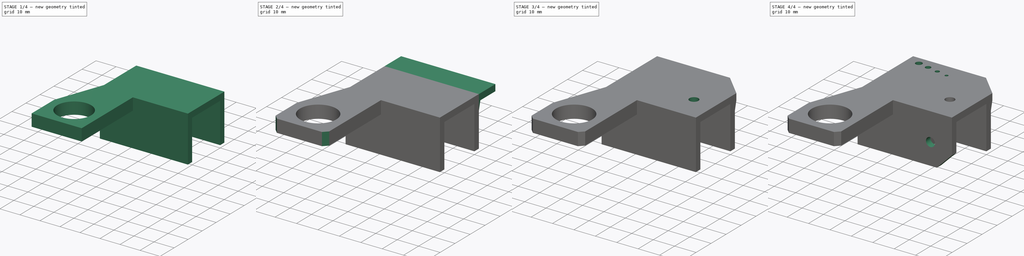
[diagram: build sequence overview — one tinted view per stage of 4, left to right]
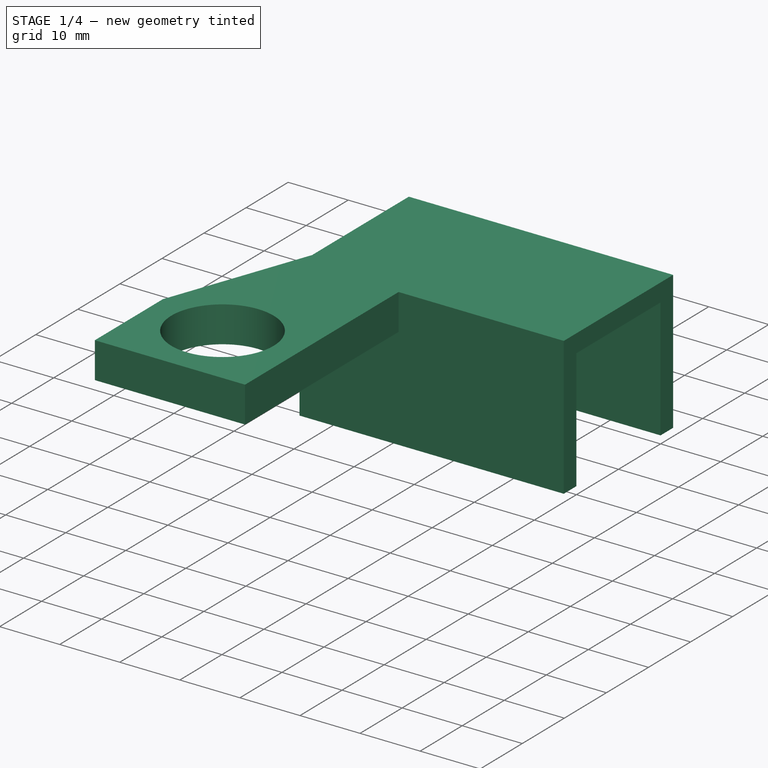
[diagram: stage 1 of 4 — iso view after this stage's code; geometry added in this stage tinted green]
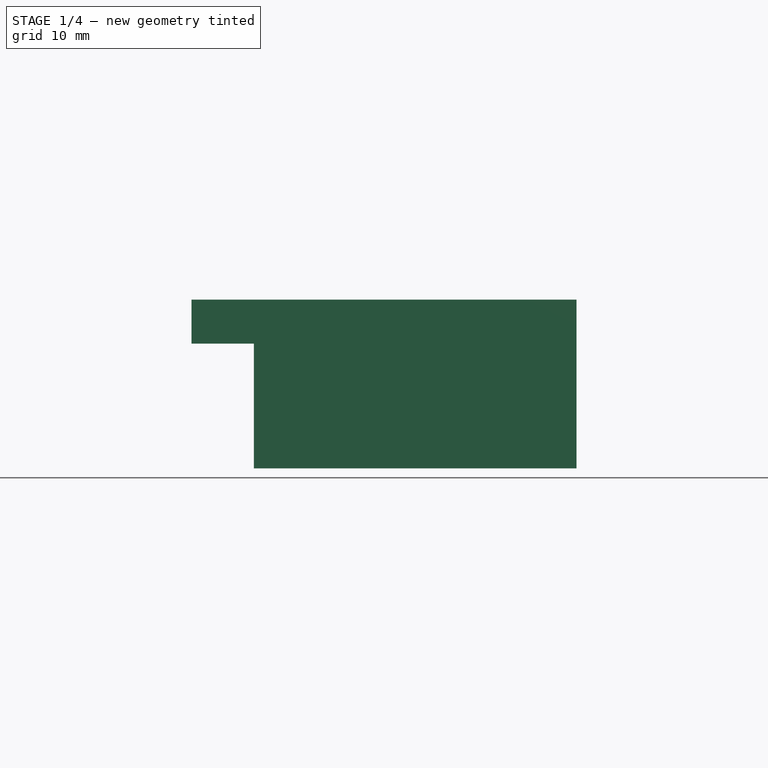
[diagram: stage 1 of 4 — front view after this stage's code; geometry added in this stage tinted green]
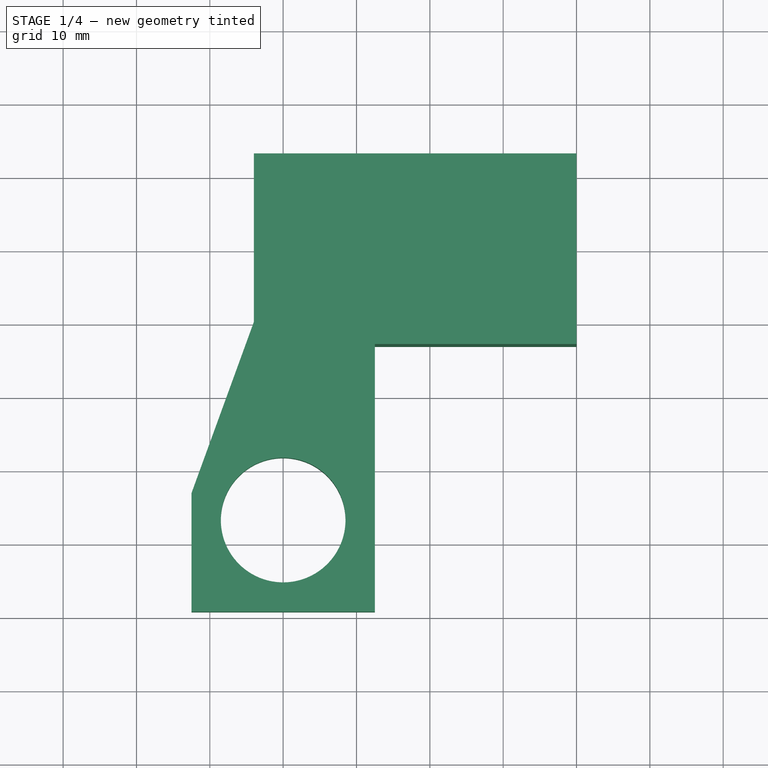
[diagram: stage 1 of 4 — top view after this stage's code; geometry added in this stage tinted green]
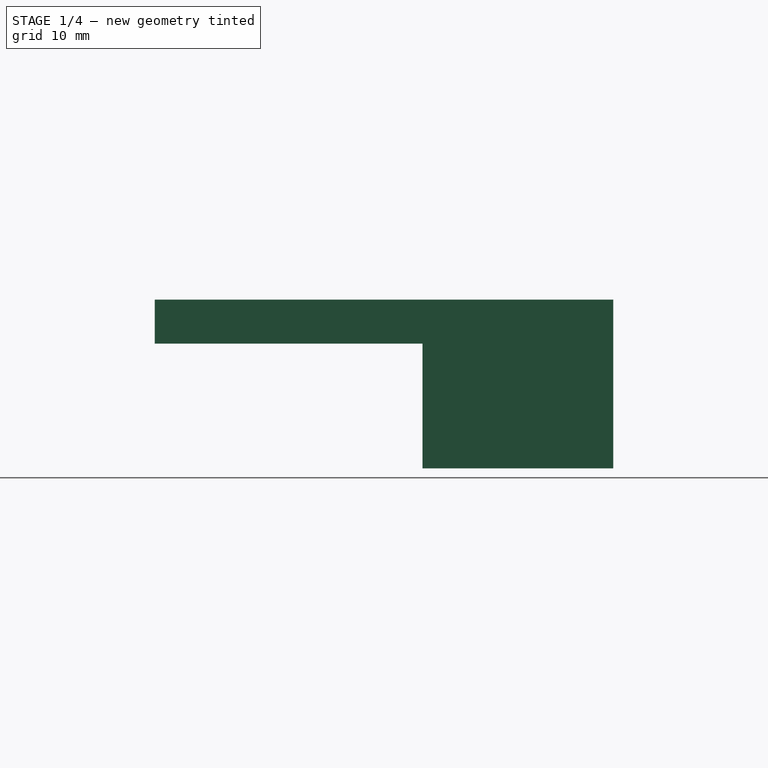
[diagram: stage 1 of 4 — right view after this stage's code; geometry added in this stage tinted green]
FCSTD DOCUMENT  (FreeCAD 0.14R3692 (Git))
Label: z-top
License: CC-BY 3.0
LicenseURL: http://creativecommons.org/licenses/by/3.0/
objects: Sketcher::SketchObject×7, Part::Chamfer×4, PartDesign::Pocket×4, Part::Feature×4, PartDesign::Pad×3, Part::Box×1, Part::Thickness×1, App::DocumentObjectGroup×1
note: 31 computed .brp shape members not serialized (recipe doc carries the construction recipe); baked Part::Feature solids carry a one-line shape summary decoded from their .brp

FEATURE [Part::Box] Box  label="body-cube"
  Height = 20
  Length = 41
  Placement = pos=(-1,0,0) rot=(0,0,1;0rad)
  Width = 20
FEATURE [Part::Thickness] Thickness  label="body-thickness"
  Faces = -> Box [Face2,Face5]
  Intersection = false
  Join = 2
  Mode = 0
  SelfIntersection = false
  Value = 3
FEATURE [Sketcher::SketchObject] Sketch  label="bearing-holder-sketch"
  Placement = pos=(0,0,23) rot=(0,0,1;0rad)
  Support = -> Thickness [Face10]
  sketch-geometry (8):
    g0: Circle CenterX=0 CenterY=-27 CenterZ=0 NormalX=0 NormalY=0 NormalZ=1 Radius=8.5
    g1: Circle [constr] CenterX=0 CenterY=-27 CenterZ=0 NormalX=0 NormalY=0 NormalZ=1 Radius=12.5
    g2: LineSegment StartX=12.5 StartY=0 StartZ=0 EndX=12.5 EndY=-39.5 EndZ=0
    g3: LineSegment StartX=12.5 StartY=-39.5 StartZ=0 EndX=-12.5 EndY=-39.5 EndZ=0
    g4: LineSegment StartX=-12.5 StartY=-23.3333 StartZ=0 EndX=-12.5 EndY=-39.5 EndZ=0
    g5: LineSegment StartX=-4 StartY=0 StartZ=0 EndX=-12.5 EndY=-23.3333 EndZ=0
    g6: LineSegment StartX=-4 StartY=0 StartZ=0 EndX=12.5 EndY=0 EndZ=0
    g7: Circle [constr] CenterX=0 CenterY=-27 CenterZ=0 NormalX=0 NormalY=0 NormalZ=1 Radius=13
  constraints (22):
    c: DistanceY(g-1,g0) = -27
    c: PointOnObject(g0,g-2)
    c: Radius(g0) = 8.5
    c: Coincident(g1,g0)
    c: Radius(g1) = 12.5
    c: PointOnObject(g2,g-1)
    c: Vertical(g2)
    c: Tangent(g1,g2)
    c: Coincident(g2,g3)
    c: Horizontal(g3)
    c: Coincident(g3,g4)
    c: Vertical(g4)
    c: Tangent(g3,g1)
    c: Tangent(g4,g1)
    c: Coincident(g4,g5)
    c: PointOnObject(g5,g-1)
    c: DistanceX(g-1,g5) = -4
    c: Coincident(g6,g2)
    c: Coincident(g6,g5)
    c: Coincident(g7,g0)
    c: Radius(g7) = 13
    c: Tangent(g7,g5)
FEATURE [PartDesign::Pad] Pad  label="bearing-holder-pad"
  Length = 6
  Length2 = 100
  Reversed = true
  Sketch = -> Sketch
  Type = 0
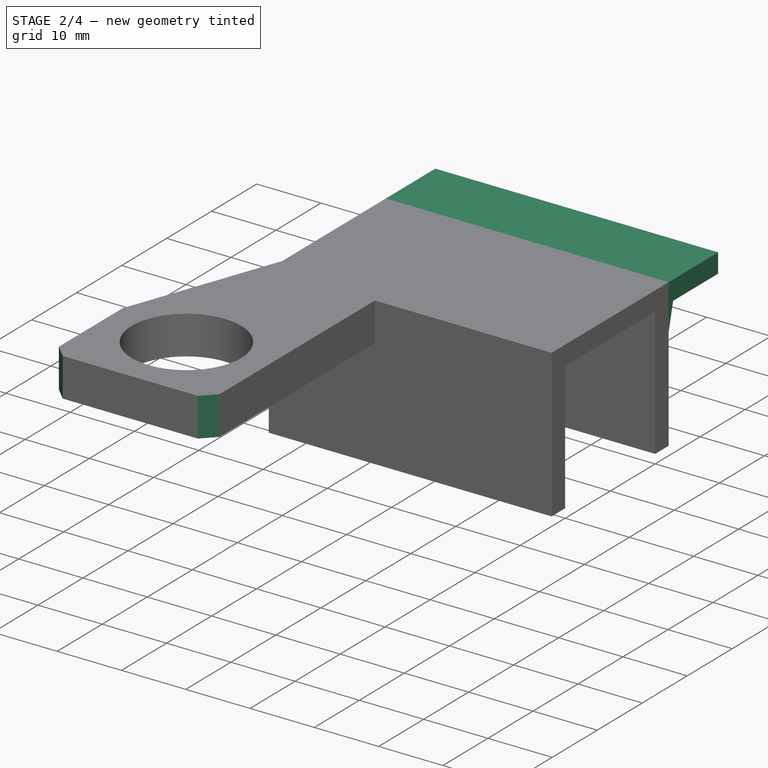
[diagram: stage 2 of 4 — iso view after this stage's code; geometry added in this stage tinted green]
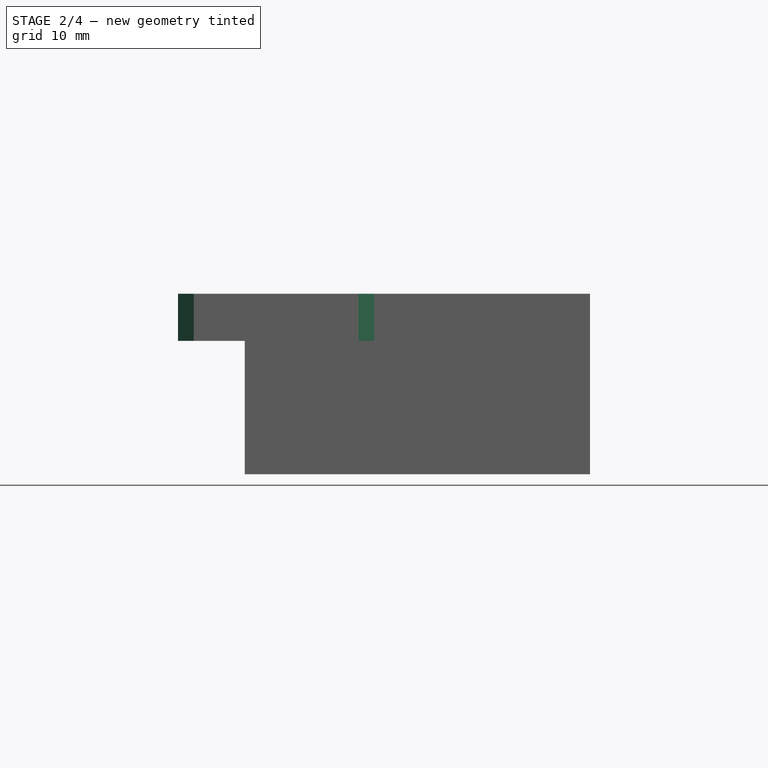
[diagram: stage 2 of 4 — front view after this stage's code; geometry added in this stage tinted green]
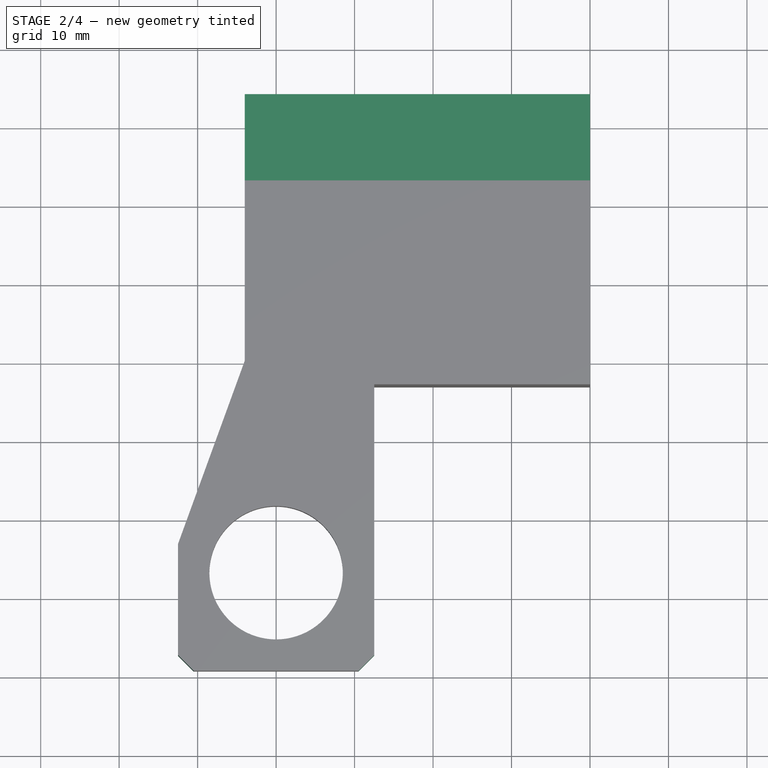
[diagram: stage 2 of 4 — top view after this stage's code; geometry added in this stage tinted green]
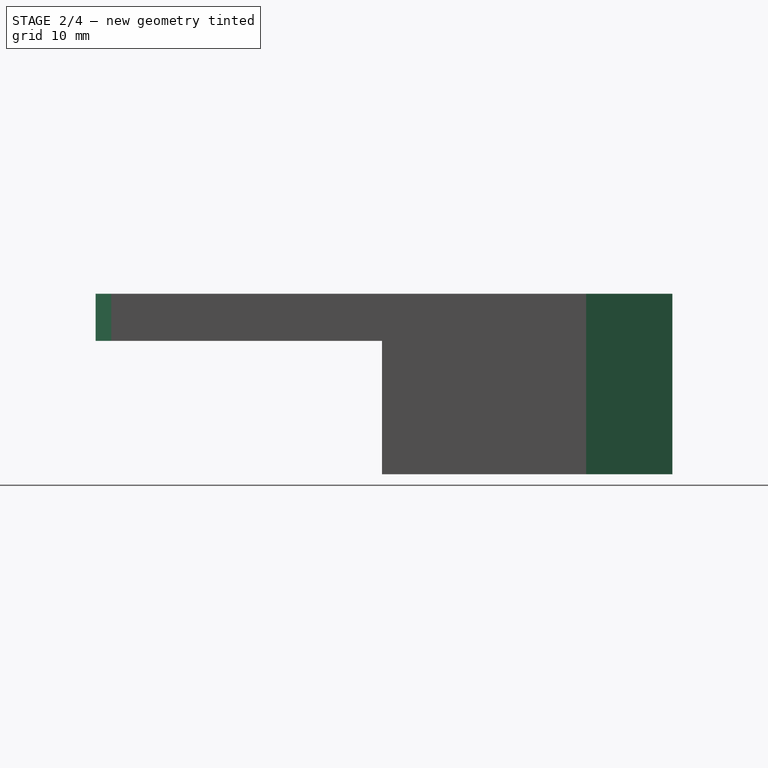
[diagram: stage 2 of 4 — right view after this stage's code; geometry added in this stage tinted green]
FEATURE [Part::Chamfer] Chamfer002  label="bearing-holder-chamfer"
  Base = -> Pad
  Edges = 2 edges r=2: [Edge43,Edge49]
FEATURE [Sketcher::SketchObject] Sketch001  label="tool-holder-sketch"
  Placement = pos=(0,23,0) rot=(0,0.707107,0.707107;3.14159rad)
  Support = -> Chamfer002 [Face15]
  sketch-geometry (6):
    g0: LineSegment StartX=-40 StartY=23 StartZ=0 EndX=-40 EndY=20 EndZ=0
    g1: LineSegment StartX=-40 StartY=20 StartZ=0 EndX=1 EndY=20 EndZ=0
    g2: LineSegment StartX=1 StartY=20 StartZ=0 EndX=1 EndY=0 EndZ=0
    g3: LineSegment StartX=1 StartY=0 StartZ=0 EndX=4 EndY=0 EndZ=0
    g4: LineSegment StartX=4 StartY=0 StartZ=0 EndX=4 EndY=23 EndZ=0
    g5: LineSegment StartX=4 StartY=23 StartZ=0 EndX=-40 EndY=23 EndZ=0
  constraints (18):
    c: Horizontal(g1)
    c: Horizontal(g3)
    c: Horizontal(g5)
    c: Vertical(g4)
    c: Vertical(g2)
    c: Vertical(g0)
    c: Coincident(g2,g3)
    c: Coincident(g3,g4)
    c: Coincident(g4,g5)
    c: Coincident(g1,g2)
    c: Coincident(g0,g1)
    c: Coincident(g0,g5)
    c: DistanceX(g3) = 3
    c: Equal(g3,g0)
    c: DistanceX(g5) = -44
    c: DistanceY(g2) = -20
    c: PointOnObject(g2,g-1)
    c: DistanceX(g-1,g2) = 1
FEATURE [PartDesign::Pad] Pad001  label="tool-holder-pad"
  Length = 11
  Length2 = 100
  Sketch = -> Sketch001
  Type = 0
FEATURE [Part::Chamfer] Chamfer  label="tool-holder-reinforced-chamfer"
  Base = -> Pad001
  Edges = 1 edges: [Edge55 r1=4 r2=1]
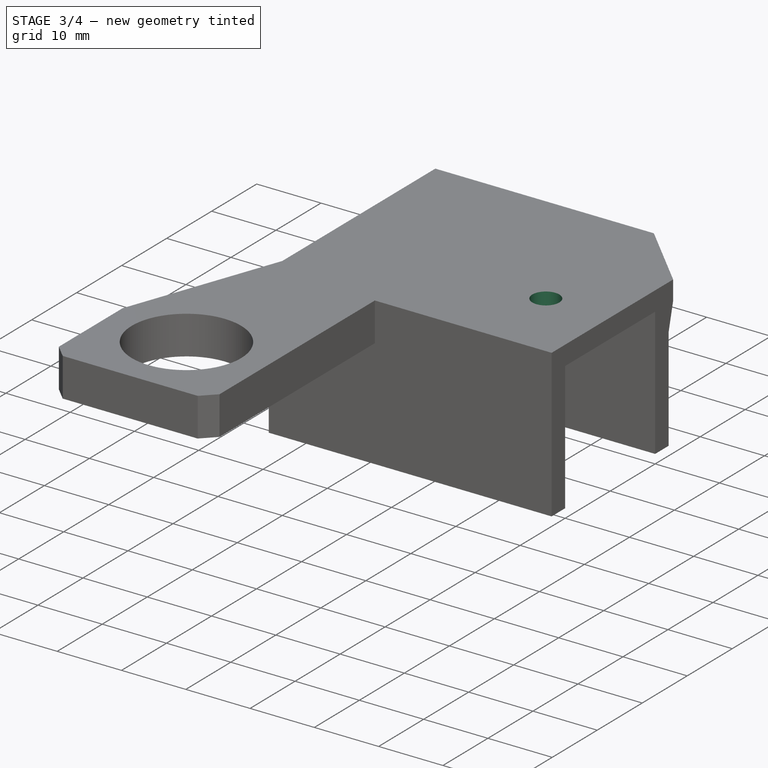
[diagram: stage 3 of 4 — iso view after this stage's code; geometry added in this stage tinted green]
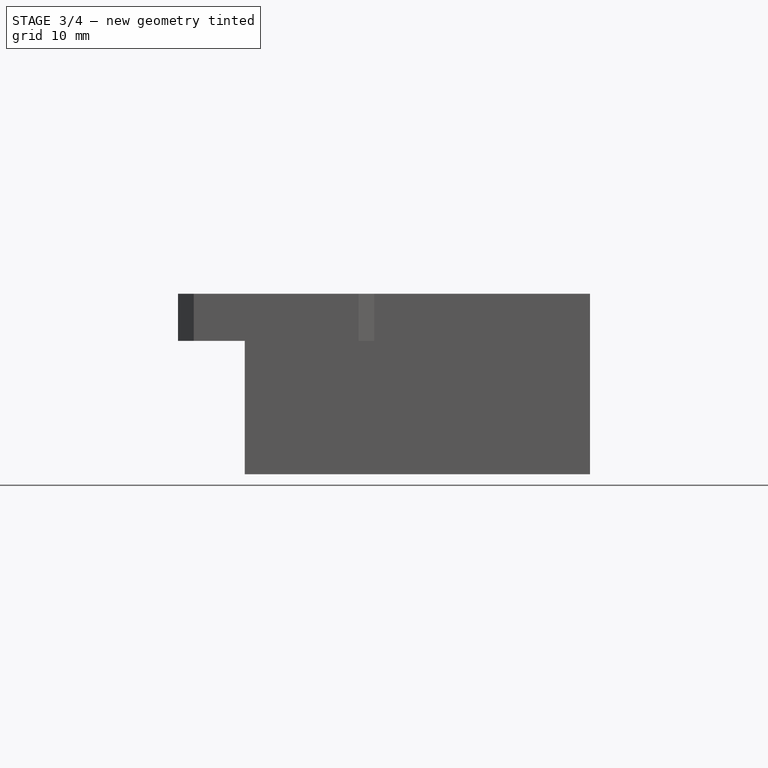
[diagram: stage 3 of 4 — front view after this stage's code; geometry added in this stage tinted green]
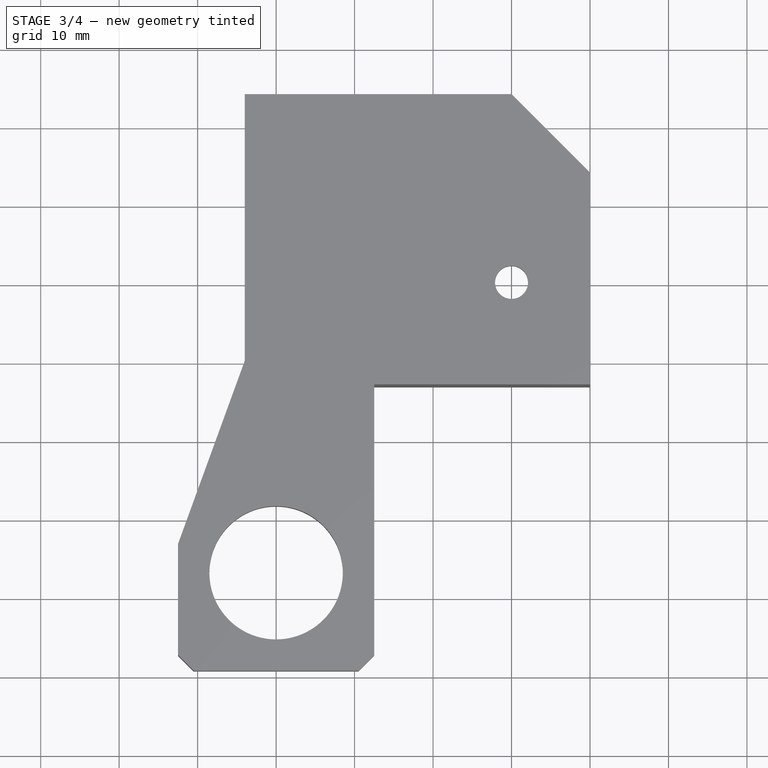
[diagram: stage 3 of 4 — top view after this stage's code; geometry added in this stage tinted green]
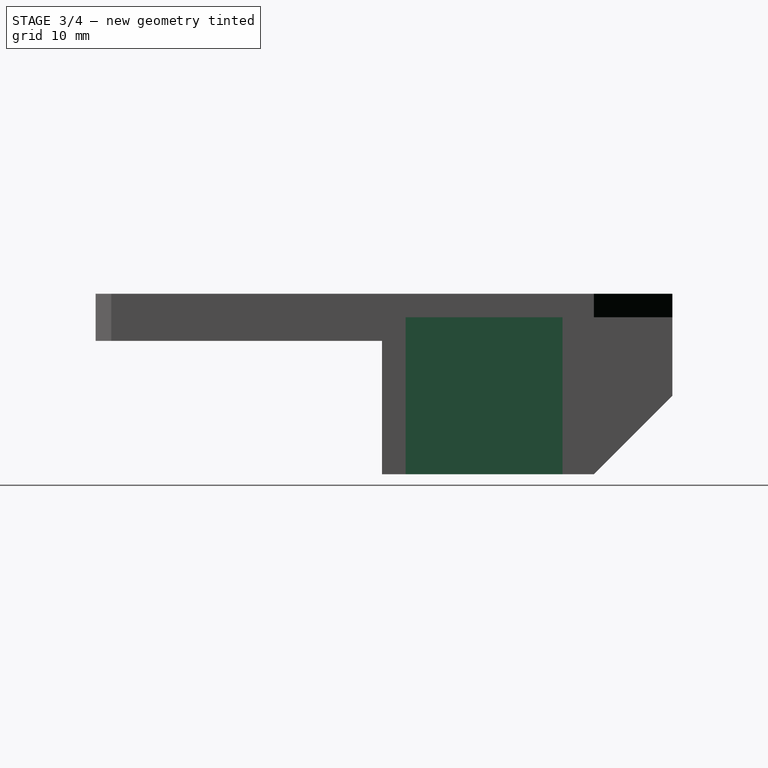
[diagram: stage 3 of 4 — right view after this stage's code; geometry added in this stage tinted green]
FEATURE [Part::Chamfer] Chamfer001  label="tool-holder-chamfer"
  Base = -> Chamfer
  Edges = 2 edges r=10: [Edge16,Edge46]
FEATURE [Sketcher::SketchObject] Sketch005  label="slot-left-guide-sketch"
  Placement = pos=(0,0,20) rot=(1,0,0;3.14159rad)
  Support = -> Chamfer001 [Face13]
  sketch-geometry (12):
    g0: LineSegment StartX=6 StartY=0 StartZ=0 EndX=12 EndY=0 EndZ=0
    g1: LineSegment StartX=12 StartY=0 StartZ=0 EndX=12 EndY=-2.5 EndZ=0
    g2: LineSegment StartX=12 StartY=-2.5 StartZ=0 EndX=6 EndY=-2.5 EndZ=0
    g3: LineSegment StartX=6 StartY=-2.5 StartZ=0 EndX=6 EndY=0 EndZ=0
    g4: LineSegment StartX=6 StartY=-17.5 StartZ=0 EndX=12 EndY=-17.5 EndZ=0
    g5: LineSegment StartX=12 StartY=-17.5 StartZ=0 EndX=12 EndY=-20 EndZ=0
    g6: LineSegment StartX=12 StartY=-20 StartZ=0 EndX=6 EndY=-20 EndZ=0
    g7: LineSegment StartX=6 StartY=-20 StartZ=0 EndX=6 EndY=-17.5 EndZ=0
    g8: LineSegment StartX=19 StartY=0 StartZ=0 EndX=20 EndY=0 EndZ=0
    g9: LineSegment StartX=20 StartY=0 StartZ=0 EndX=20 EndY=-20 EndZ=0
    g10: LineSegment StartX=20 StartY=-20 StartZ=0 EndX=19 EndY=-20 EndZ=0
    g11: LineSegment StartX=19 StartY=-20 StartZ=0 EndX=19 EndY=0 EndZ=0
  constraints (36):
    c: Coincident(g0,g1)
    c: Coincident(g1,g2)
    c: Coincident(g2,g3)
    c: Coincident(g3,g0)
    c: Horizontal(g0)
    c: Horizontal(g2)
    c: Vertical(g1)
    c: Vertical(g3)
    c: Coincident(g4,g5)
    c: Coincident(g5,g6)
    c: Coincident(g6,g7)
    c: Coincident(g7,g4)
    c: Horizontal(g4)
    c: Horizontal(g6)
    c: Vertical(g5)
    c: Vertical(g7)
    c: DistanceY(g5) = -2.5
    c: DistanceX(g4) = 6
    c: DistanceX(g2) = -6
    c: DistanceY(g1) = -2.5
    c: DistanceX(g-1,g0) = 6
    c: PointOnObject(g0,g-1)
    c: DistanceY(g-1,g6) = -20
    c: DistanceX(g-1,g6) = 6
    c: Coincident(g8,g9)
    c: Coincident(g9,g10)
    c: Coincident(g10,g11)
    c: Coincident(g11,g8)
    c: Horizontal(g8)
    c: Horizontal(g10)
    c: Vertical(g9)
    c: Vertical(g11)
    c: DistanceX(g10) = -1
    c: DistanceY(g9) = -20
    c: PointOnObject(g8,g-1)
    c: DistanceX(g-1,g8) = 19
FEATURE [PartDesign::Pad] Pad002  label="slot-left-guide-pad"
  Length = 20
  Length2 = 100
  Sketch = -> Sketch005
  Type = 0
FEATURE [Sketcher::SketchObject] Sketch003  label="slot-left-screw-hole-sketch"
  Placement = pos=(-4,0,0) rot=(0.57735,-0.57735,-0.57735;2.0944rad)
  Support = -> Pad002 [Face19]
  sketch-geometry (1):
    g0: Circle CenterX=-10 CenterY=10 CenterZ=0 NormalX=0 NormalY=0 NormalZ=1 Radius=2.1
  constraints (3):
    c: DistanceY(g-1,g0) = 10
    c: DistanceX(g-1,g0) = -10
    c: Radius(g0) = 2.1
FEATURE [PartDesign::Pocket] Pocket004  label="slot-left-screw-hole-pocket"
  Length = 3
  Sketch = -> Sketch003
  Type = 0
FEATURE [Sketcher::SketchObject] Sketch004  label="slot-top-top-screw-hole-sketch"
  Placement = pos=(0,0,23) rot=(0,0,1;0rad)
  Support = -> Pocket004 [Face8]
  sketch-geometry (1):
    g0: Circle CenterX=30 CenterY=10 CenterZ=0 NormalX=0 NormalY=0 NormalZ=1 Radius=2.1
  constraints (3):
    c: DistanceX(g-1,g0) = 30
    c: DistanceY(g-1,g0) = 10
    c: Radius(g0) = 2.1
FEATURE [PartDesign::Pocket] Pocket005  label="slot-top-top-screw-hole-pocket"
  Length = 3
  Sketch = -> Sketch004
  Type = 0
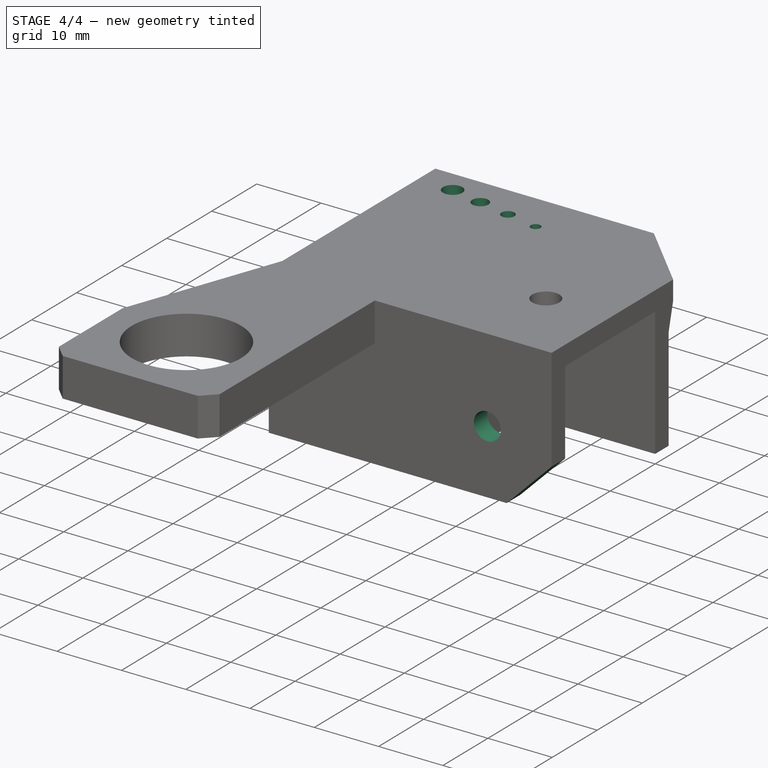
[diagram: stage 4 of 4 — iso view after this stage's code; geometry added in this stage tinted green]
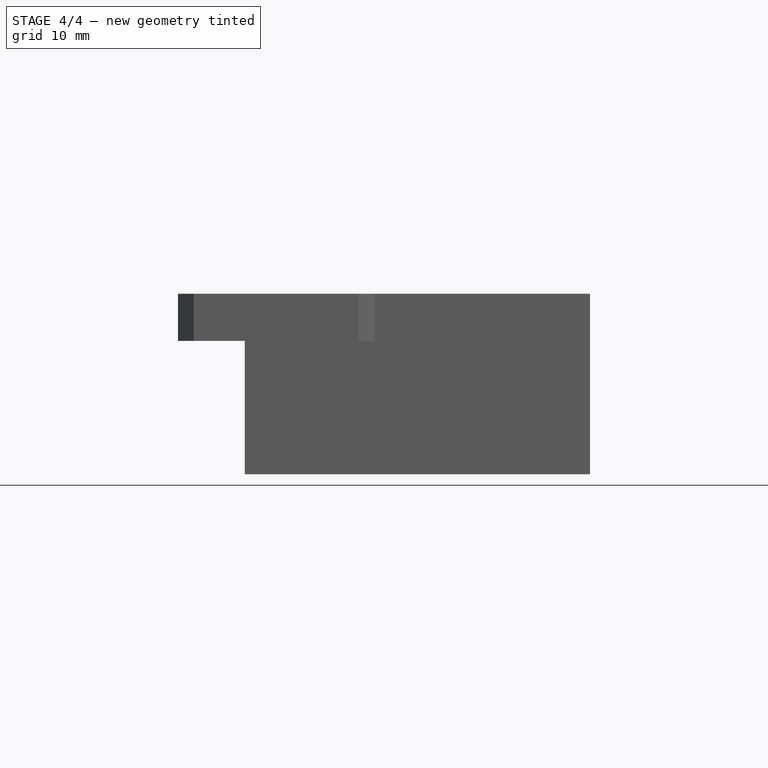
[diagram: stage 4 of 4 — front view after this stage's code; geometry added in this stage tinted green]
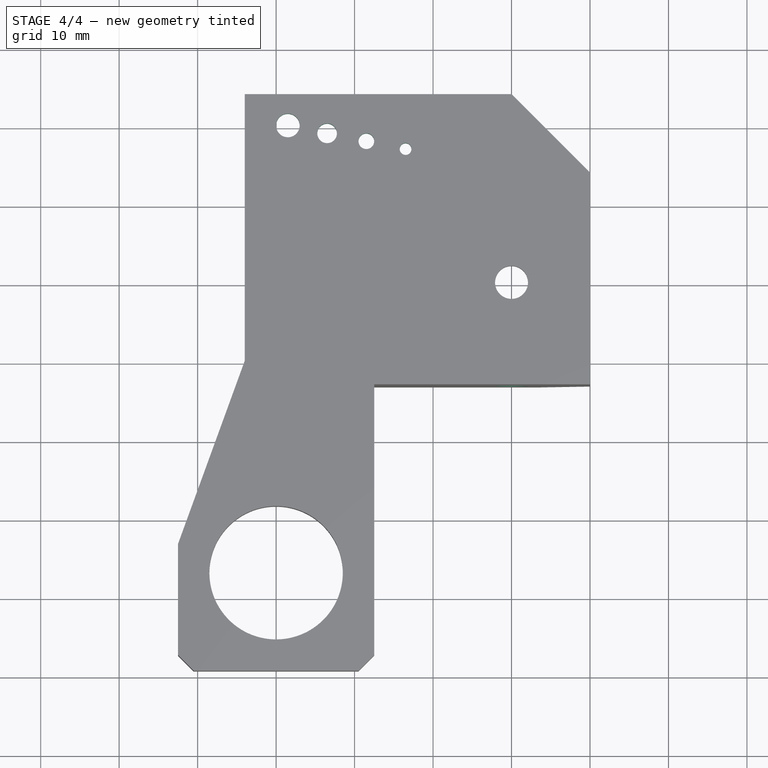
[diagram: stage 4 of 4 — top view after this stage's code; geometry added in this stage tinted green]
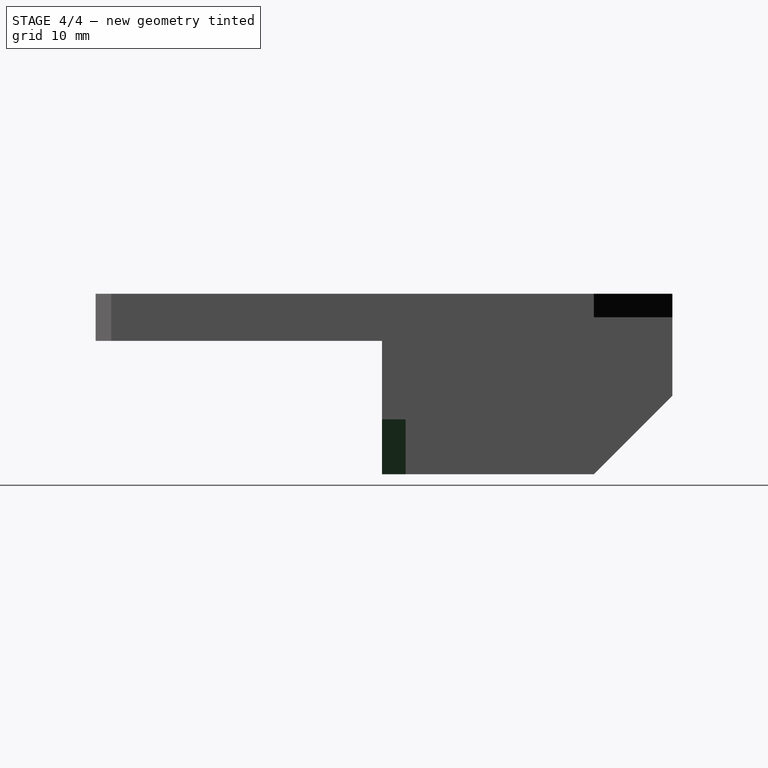
[diagram: stage 4 of 4 — right view after this stage's code; geometry added in this stage tinted green]
FEATURE [Sketcher::SketchObject] Sketch002  label="slot-top-rear-screw-hole-sketch"
  Placement = pos=(0,-3,0) rot=(1,0,0;1.5708rad)
  Support = -> Pocket005 [Face14]
  sketch-geometry (1):
    g0: Circle CenterX=30 CenterY=10 CenterZ=0 NormalX=0 NormalY=0 NormalZ=1 Radius=2.1
  constraints (3):
    c: DistanceY(g-1,g0) = 10
    c: DistanceX(g-1,g0) = 30
    c: Radius(g0) = 2.1
FEATURE [PartDesign::Pocket] Pocket  label="slot-top-rear-screw-hole-pocket"
  Length = 3
  Sketch = -> Sketch002
  Type = 0
FEATURE [Sketcher::SketchObject] Sketch006  label="tool-holder-holes-sketch"
  Placement = pos=(0,0,23) rot=(0,0,1;0rad)
  Support = -> Pocket [Face2]
  sketch-geometry (5):
    g0: Circle CenterX=1.5 CenterY=30 CenterZ=0 NormalX=0 NormalY=0 NormalZ=1 Radius=1.5
    g1: Circle CenterX=6.5 CenterY=29 CenterZ=0 NormalX=0 NormalY=0 NormalZ=1 Radius=1.25
    g2: Circle CenterX=11.5 CenterY=28 CenterZ=0 NormalX=0 NormalY=0 NormalZ=1 Radius=1
    g3: Circle CenterX=16.5 CenterY=27 CenterZ=0 NormalX=0 NormalY=0 NormalZ=1 Radius=0.75
    g4: LineSegment [constr] StartX=1.5 StartY=30 StartZ=0 EndX=16.5 EndY=27 EndZ=0
  constraints (14):
    c: Radius(g0) = 1.5
    c: Radius(g1) = 1.25
    c: Radius(g2) = 1
    c: Radius(g3) = 0.75
    c: Coincident(g4,g0)
    c: Coincident(g4,g3)
    c: PointOnObject(g1,g4)
    c: PointOnObject(g2,g4)
    c: DistanceX(g-1,g3) = 16.5
    c: DistanceX(g-1,g0) = 1.5
    c: DistanceY(g-1,g0) = 30
    c: DistanceY(g-1,g3) = 27
    c: DistanceY(g-1,g1) = 29
    c: DistanceY(g-1,g2) = 28
FEATURE [PartDesign::Pocket] Pocket003  label="tool-holder-holes-pocket"
  Length = 3
  Sketch = -> Sketch006
  Type = 0
FEATURE [Part::Feature] Part__Feature  label="extrusion-p20n6b-300-left"
  Placement = pos=(9,10,-280) rot=(0,0,1;0rad)
  shape: bbox 20 x 20 x 300 mm, 154 faces (baked)
FEATURE [Part::Feature] Part__Feature001  label="extrusion-p20n6b-200-top"
  Placement = pos=(20,10,10) rot=(0,1,0;1.5708rad)
  shape: bbox 200 x 20 x 20 mm, 154 faces (baked)
FEATURE [Part::Feature] Part__Feature002  label="threaded-rod-05-230-z-left"
  Placement = pos=(0,-27,-209.5) rot=(0,0,1;0rad)
  shape: bbox 5 x 5 x 230 mm, 3 faces (baked)
FEATURE [App::DocumentObjectGroup] Grupo  label="aux"
  Group = -> [Part__Feature,Part__Feature001,Part__Feature002]
FEATURE [Part::Chamfer] Chamfer003  label="slot-top-chamfer"
  Base = -> Pocket003
  Edges = 1 edges r=7: [Edge23]
FEATURE [Part::Feature] Chamfer003002  label="z-top-left"
  shape: bbox 52.5 x 73.5 x 23 mm, 45 faces (baked)
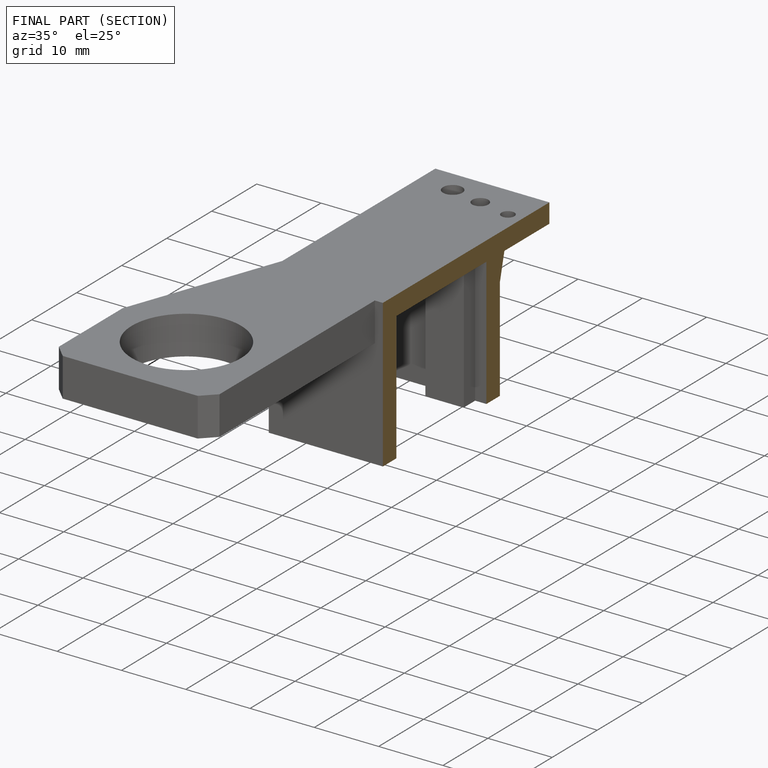
[diagram: finished part — half-section view (interior)]
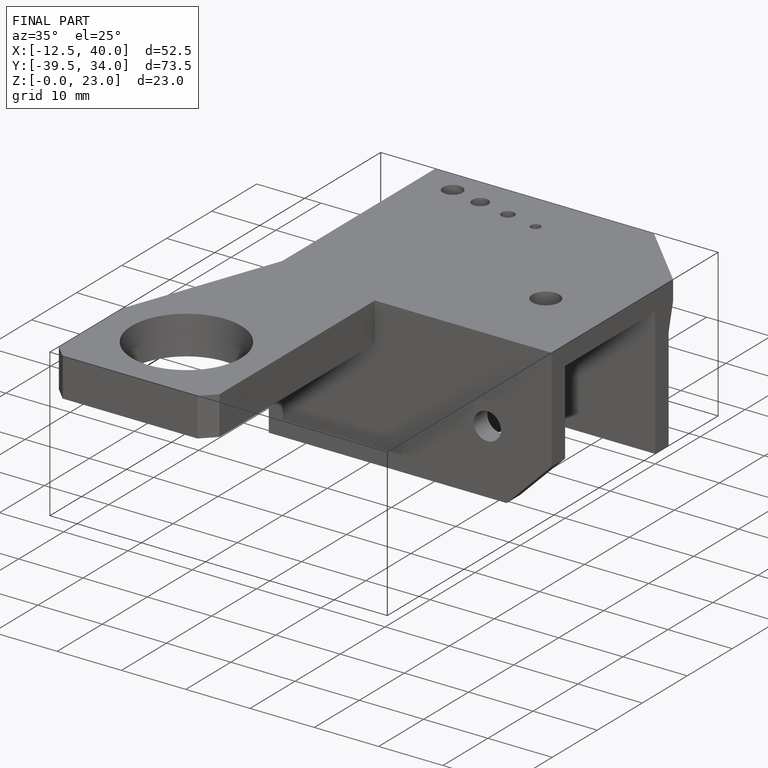
[diagram: finished part — iso view with bounding-box wireframe]
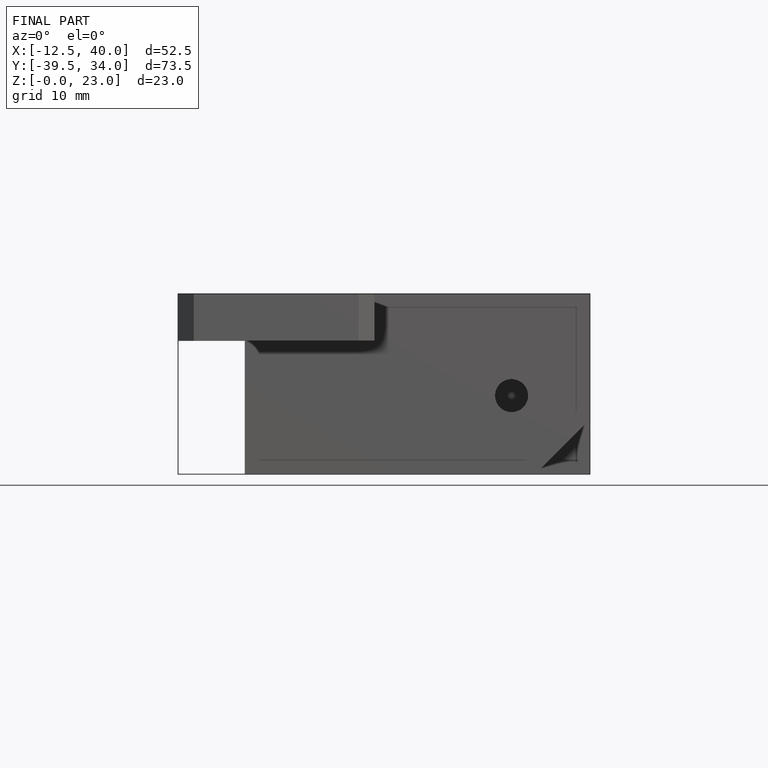
[diagram: finished part — front view with bounding-box wireframe]
